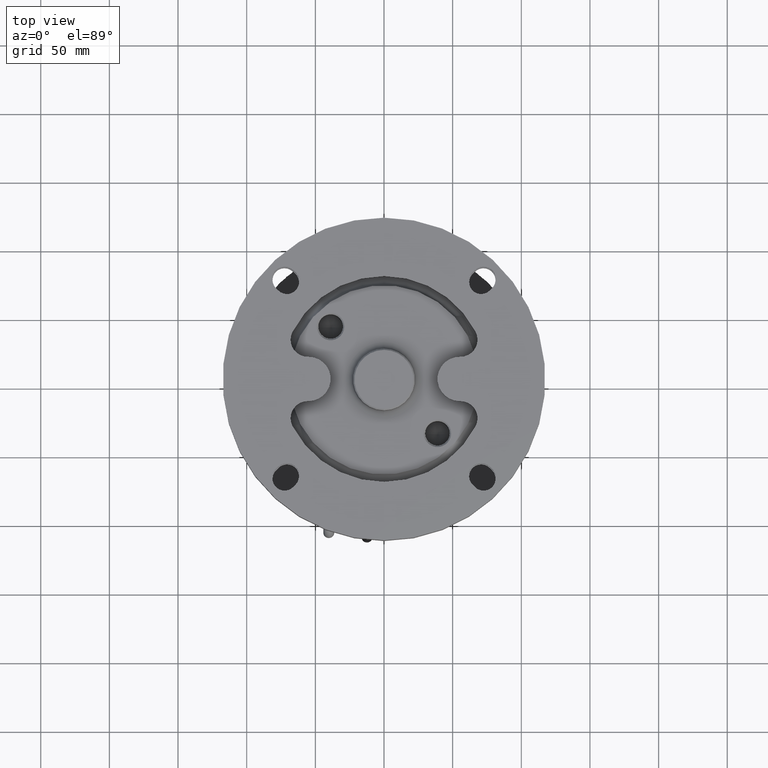
[diagram: clean part render]
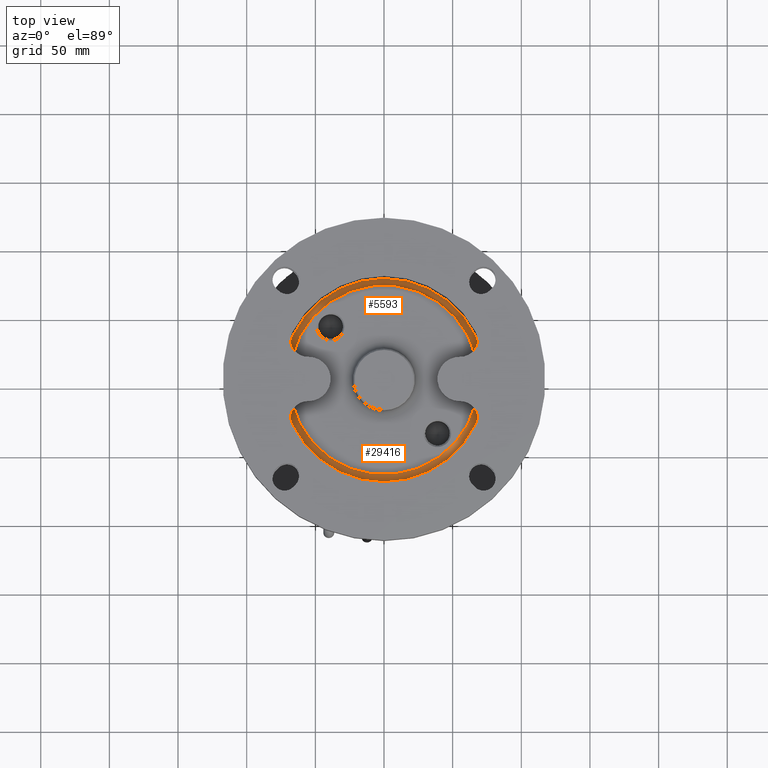
[diagram: same view with one multi-face feature highlighted, each face labeled with its STEP entity id]
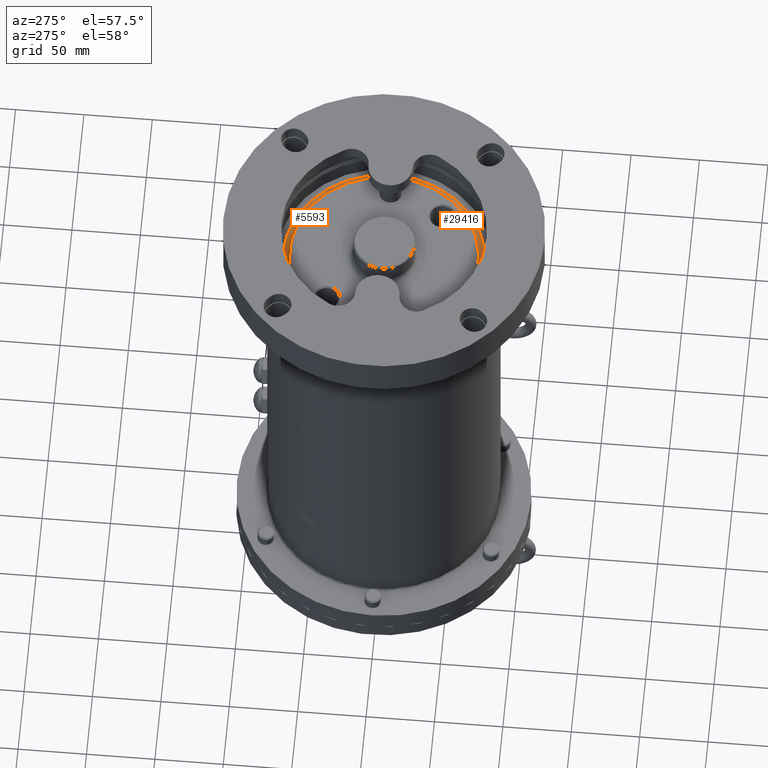
[diagram: same view with one multi-face feature highlighted, each face labeled with its STEP entity id]
A machine part, top view. The highlighted faces form ONE feature: a constant-radius fillet chain: 2 tangent blend faces with common blend radius 5 mm. The faces share edges in the B-rep.
A second angle (auxiliary view) of the same feature is appended — it is thin or edge-on in the first view.
Their STEP definitions:
[1] entity #5593 (Torus):
#1089 = CIRCLE ( 'NONE', #14465, 69.00000000000000000 ) ;
#3801 = DIRECTION ( 'NONE',  ( 0.0000000000000000000, 1.000000000000000000, 1.005636797667714300E-016 ) ) ;
#5443 = CARTESIAN_POINT ( 'NONE',  ( -69.00000000000000000, -6.123233995736771200E-016, -30.00000000000000000 ) ) ;
#5593 = ADVANCED_FACE ( 'NONE', ( #7800 ), #44224, .F. ) ;
#6010 = DIRECTION ( 'NONE',  ( -1.000000000000000000, 0.0000000000000000000, 0.0000000000000000000 ) ) ;
#7370 = EDGE_CURVE ( 'NONE', #9430, #22993, #30232, .T. ) ;
#7800 = FACE_OUTER_BOUND ( 'NONE', #10565, .T. ) ;
#9430 = VERTEX_POINT ( 'NONE', #17477 ) ;
#10565 = EDGE_LOOP ( 'NONE', ( #12378, #15636, #16786, #28860 ) ) ;
#11558 = DIRECTION ( 'NONE',  ( -1.000000000000000000, -1.224646799147352500E-016, 0.0000000000000000000 ) ) ;
#12378 = ORIENTED_EDGE ( 'NONE', *, *, #7370, .F. ) ;
#12639 = AXIS2_PLACEMENT_3D ( 'NONE', #36844, #19842, #43758 ) ;
#14195 = DIRECTION ( 'NONE',  ( 0.0000000000000000000, 0.0000000000000000000, -1.000000000000000000 ) ) ;
#14465 = AXIS2_PLACEMENT_3D ( 'NONE', #41351, #23859, #3801 ) ;
#15636 = ORIENTED_EDGE ( 'NONE', *, *, #17381, .F. ) ;
#16786 = ORIENTED_EDGE ( 'NONE', *, *, #19330, .T. ) ;
#17381 = EDGE_CURVE ( 'NONE', #23948, #9430, #18692, .T. ) ;
#17477 = CARTESIAN_POINT ( 'NONE',  ( 74.00000000000000000, 8.450062914116736300E-015, -35.00000000000000000 ) ) ;
#18315 = AXIS2_PLACEMENT_3D ( 'NONE', #18941, #42835, #6010 ) ;
#18692 = CIRCLE ( 'NONE', #18315, 74.00000000000000000 ) ;
#18941 = CARTESIAN_POINT ( 'NONE',  ( 0.0000000000000000000, -6.123233995736771200E-016, -35.00000000000000000 ) ) ;
#19330 = EDGE_CURVE ( 'NONE', #23948, #21382, #20039, .T. ) ;
#19694 = AXIS2_PLACEMENT_3D ( 'NONE', #39080, #42663, #11558 ) ;
#19842 = DIRECTION ( 'NONE',  ( -0.0000000000000000000, -1.000000000000000000, -0.0000000000000000000 ) ) ;
#20039 = CIRCLE ( 'NONE', #12639, 4.999999999999997300 ) ;
#21097 = CARTESIAN_POINT ( 'NONE',  ( 0.0000000000000000000, -6.123233995736771200E-016, -30.00000000000000000 ) ) ;
#21382 = VERTEX_POINT ( 'NONE', #5443 ) ;
#22993 = VERTEX_POINT ( 'NONE', #26007 ) ;
#23260 = EDGE_CURVE ( 'NONE', #21382, #22993, #1089, .T. ) ;
#23859 = DIRECTION ( 'NONE',  ( 0.0000000000000000000, 1.224646799147353900E-016, -1.000000000000000000 ) ) ;
#23948 = VERTEX_POINT ( 'NONE', #34540 ) ;
#25690 = AXIS2_PLACEMENT_3D ( 'NONE', #21097, #14195, #41421 ) ;
#26007 = CARTESIAN_POINT ( 'NONE',  ( 69.00000000000000000, 8.143901214329898400E-015, -30.00000000000000000 ) ) ;
#28860 = ORIENTED_EDGE ( 'NONE', *, *, #23260, .T. ) ;
#30232 = CIRCLE ( 'NONE', #19694, 5.000000000000004400 ) ;
#34540 = CARTESIAN_POINT ( 'NONE',  ( -74.00000000000000000, -6.123233995736771200E-016, -35.00000000000000000 ) ) ;
#36844 = CARTESIAN_POINT ( 'NONE',  ( -74.00000000000000000, -6.123233995736771200E-016, -30.00000000000000000 ) ) ;
#39080 = CARTESIAN_POINT ( 'NONE',  ( 74.00000000000000000, 8.450062914116736300E-015, -30.00000000000000000 ) ) ;
#41351 = CARTESIAN_POINT ( 'NONE',  ( 0.0000000000000000000, -6.123233995736771200E-016, -30.00000000000000000 ) ) ;
#41421 = DIRECTION ( 'NONE',  ( -1.000000000000000000, 0.0000000000000000000, 0.0000000000000000000 ) ) ;
#42663 = DIRECTION ( 'NONE',  ( -1.224646799147353200E-016, 1.000000000000000000, 0.0000000000000000000 ) ) ;
#42835 = DIRECTION ( 'NONE',  ( 0.0000000000000000000, 0.0000000000000000000, -1.000000000000000000 ) ) ;
#43758 = DIRECTION ( 'NONE',  ( 0.0000000000000000000, 0.0000000000000000000, -1.000000000000000000 ) ) ;
#44224 = TOROIDAL_SURFACE ( 'NONE', #25690, 74.00000000000000000, 5.000000000000000000 ) ;
[2] entity #29416 (Torus):
#5281 = DIRECTION ( 'NONE',  ( 0.0000000000000000000, 0.0000000000000000000, -1.000000000000000000 ) ) ;
#5403 = ORIENTED_EDGE ( 'NONE', *, *, #36158, .T. ) ;
#5443 = CARTESIAN_POINT ( 'NONE',  ( -69.00000000000000000, -6.123233995736771200E-016, -30.00000000000000000 ) ) ;
#7370 = EDGE_CURVE ( 'NONE', #9430, #22993, #30232, .T. ) ;
#8395 = ORIENTED_EDGE ( 'NONE', *, *, #7370, .T. ) ;
#9430 = VERTEX_POINT ( 'NONE', #17477 ) ;
#10130 = DIRECTION ( 'NONE',  ( 0.0000000000000000000, 1.000000000000000000, 1.005636797667714300E-016 ) ) ;
#10599 = CIRCLE ( 'NONE', #16439, 69.00000000000000000 ) ;
#11558 = DIRECTION ( 'NONE',  ( -1.000000000000000000, -1.224646799147352500E-016, 0.0000000000000000000 ) ) ;
#12331 = DIRECTION ( 'NONE',  ( -1.000000000000000000, 0.0000000000000000000, 0.0000000000000000000 ) ) ;
#12639 = AXIS2_PLACEMENT_3D ( 'NONE', #36844, #19842, #43758 ) ;
#12673 = DIRECTION ( 'NONE',  ( -1.000000000000000000, 0.0000000000000000000, 0.0000000000000000000 ) ) ;
#16439 = AXIS2_PLACEMENT_3D ( 'NONE', #38717, #31845, #10130 ) ;
#17477 = CARTESIAN_POINT ( 'NONE',  ( 74.00000000000000000, 8.450062914116736300E-015, -35.00000000000000000 ) ) ;
#18172 = TOROIDAL_SURFACE ( 'NONE', #19139, 74.00000000000000000, 5.000000000000000000 ) ;
#19139 = AXIS2_PLACEMENT_3D ( 'NONE', #19714, #26597, #12673 ) ;
#19330 = EDGE_CURVE ( 'NONE', #23948, #21382, #20039, .T. ) ;
#19694 = AXIS2_PLACEMENT_3D ( 'NONE', #39080, #42663, #11558 ) ;
#19714 = CARTESIAN_POINT ( 'NONE',  ( 0.0000000000000000000, -6.123233995736771200E-016, -30.00000000000000000 ) ) ;
#19740 = FACE_OUTER_BOUND ( 'NONE', #21698, .T. ) ;
#19842 = DIRECTION ( 'NONE',  ( -0.0000000000000000000, -1.000000000000000000, -0.0000000000000000000 ) ) ;
#20039 = CIRCLE ( 'NONE', #12639, 4.999999999999997300 ) ;
#21382 = VERTEX_POINT ( 'NONE', #5443 ) ;
#21698 = EDGE_LOOP ( 'NONE', ( #39141, #8395, #5403, #28284 ) ) ;
#22993 = VERTEX_POINT ( 'NONE', #26007 ) ;
#23495 = CIRCLE ( 'NONE', #33070, 74.00000000000000000 ) ;
#23948 = VERTEX_POINT ( 'NONE', #34540 ) ;
#26007 = CARTESIAN_POINT ( 'NONE',  ( 69.00000000000000000, 8.143901214329898400E-015, -30.00000000000000000 ) ) ;
#26597 = DIRECTION ( 'NONE',  ( 0.0000000000000000000, 0.0000000000000000000, -1.000000000000000000 ) ) ;
#28284 = ORIENTED_EDGE ( 'NONE', *, *, #19330, .F. ) ;
#29416 = ADVANCED_FACE ( 'NONE', ( #19740 ), #18172, .F. ) ;
#30232 = CIRCLE ( 'NONE', #19694, 5.000000000000004400 ) ;
#31845 = DIRECTION ( 'NONE',  ( 0.0000000000000000000, 1.224646799147353900E-016, -1.000000000000000000 ) ) ;
#33070 = AXIS2_PLACEMENT_3D ( 'NONE', #39097, #5281, #12331 ) ;
#34540 = CARTESIAN_POINT ( 'NONE',  ( -74.00000000000000000, -6.123233995736771200E-016, -35.00000000000000000 ) ) ;
#35673 = EDGE_CURVE ( 'NONE', #9430, #23948, #23495, .T. ) ;
#36158 = EDGE_CURVE ( 'NONE', #22993, #21382, #10599, .T. ) ;
#36844 = CARTESIAN_POINT ( 'NONE',  ( -74.00000000000000000, -6.123233995736771200E-016, -30.00000000000000000 ) ) ;
#38717 = CARTESIAN_POINT ( 'NONE',  ( 0.0000000000000000000, -6.123233995736771200E-016, -30.00000000000000000 ) ) ;
#39080 = CARTESIAN_POINT ( 'NONE',  ( 74.00000000000000000, 8.450062914116736300E-015, -30.00000000000000000 ) ) ;
#39097 = CARTESIAN_POINT ( 'NONE',  ( 0.0000000000000000000, -6.123233995736771200E-016, -35.00000000000000000 ) ) ;
#39141 = ORIENTED_EDGE ( 'NONE', *, *, #35673, .F. ) ;
#42663 = DIRECTION ( 'NONE',  ( -1.224646799147353200E-016, 1.000000000000000000, 0.0000000000000000000 ) ) ;
#43758 = DIRECTION ( 'NONE',  ( 0.0000000000000000000, 0.0000000000000000000, -1.000000000000000000 ) ) ;